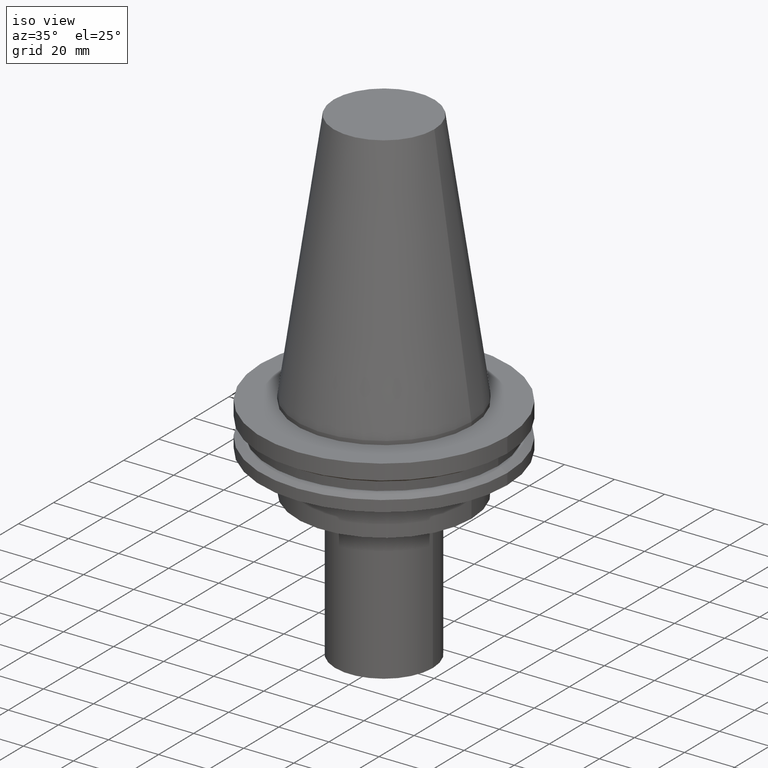
[diagram: clean part render]
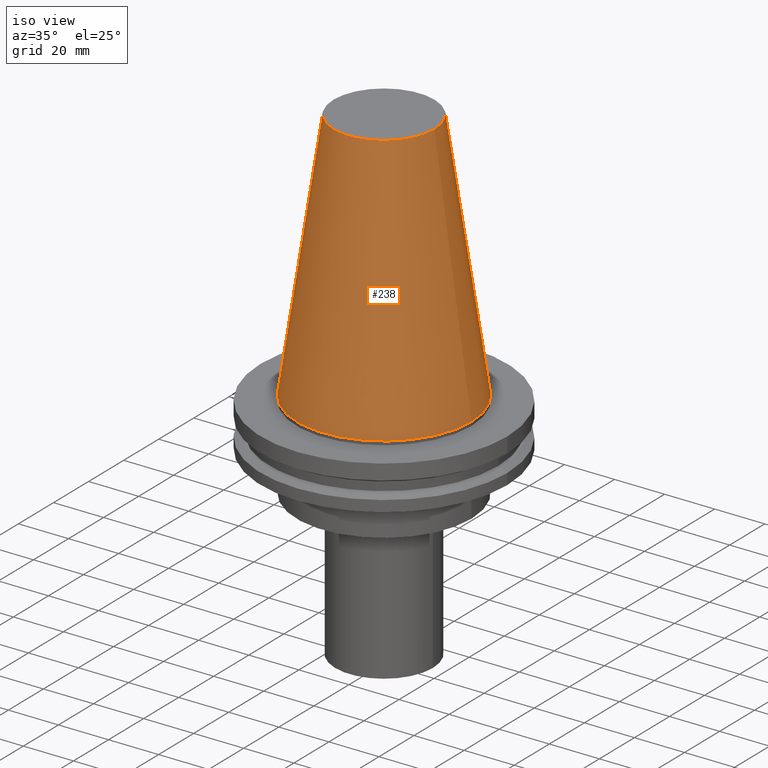
[diagram: tour spotlight — one face highlighted and labeled with its STEP entity id]
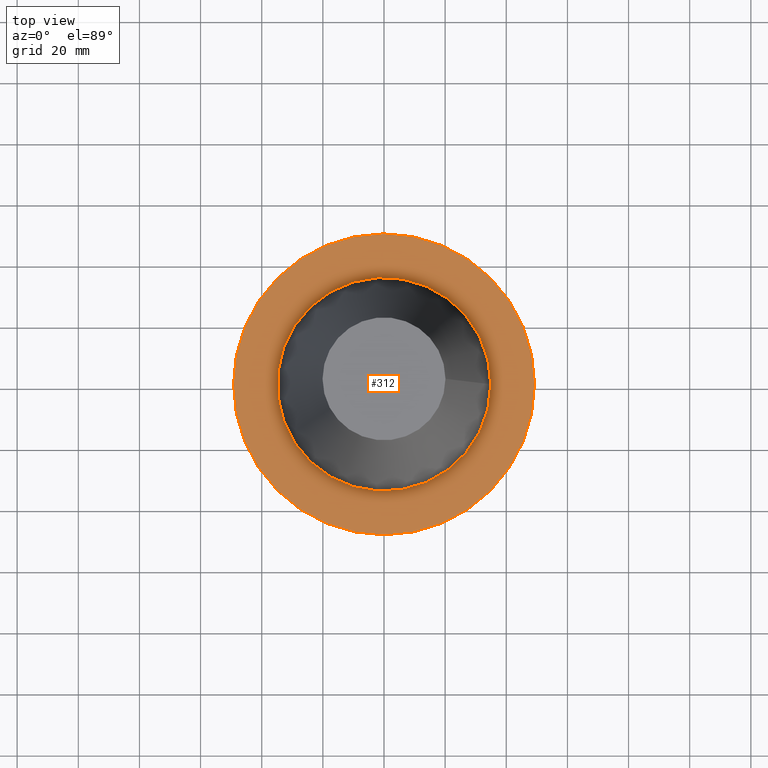
[diagram: tour spotlight — one face highlighted and labeled with its STEP entity id]
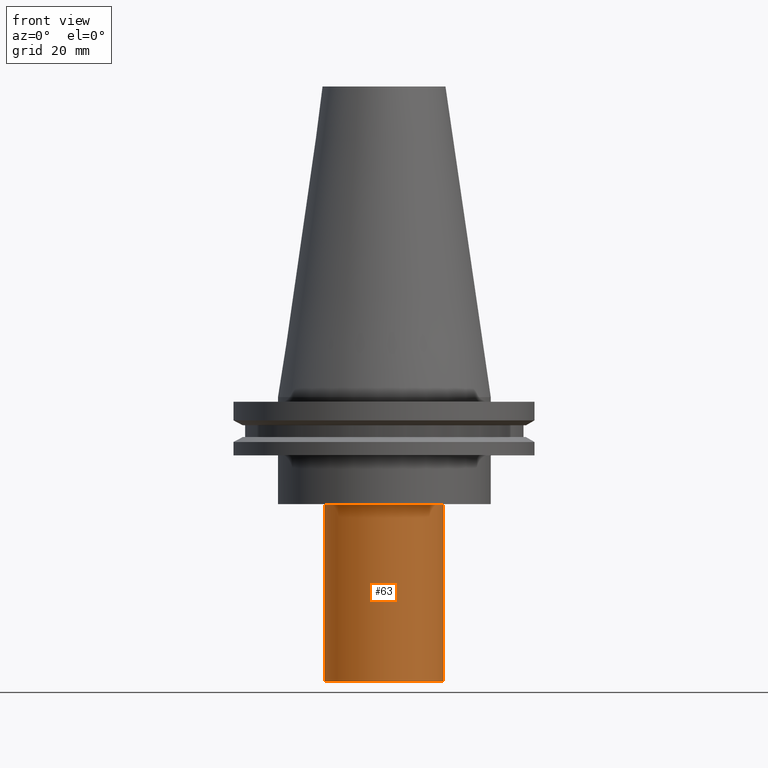
[diagram: tour spotlight — one face highlighted and labeled with its STEP entity id]
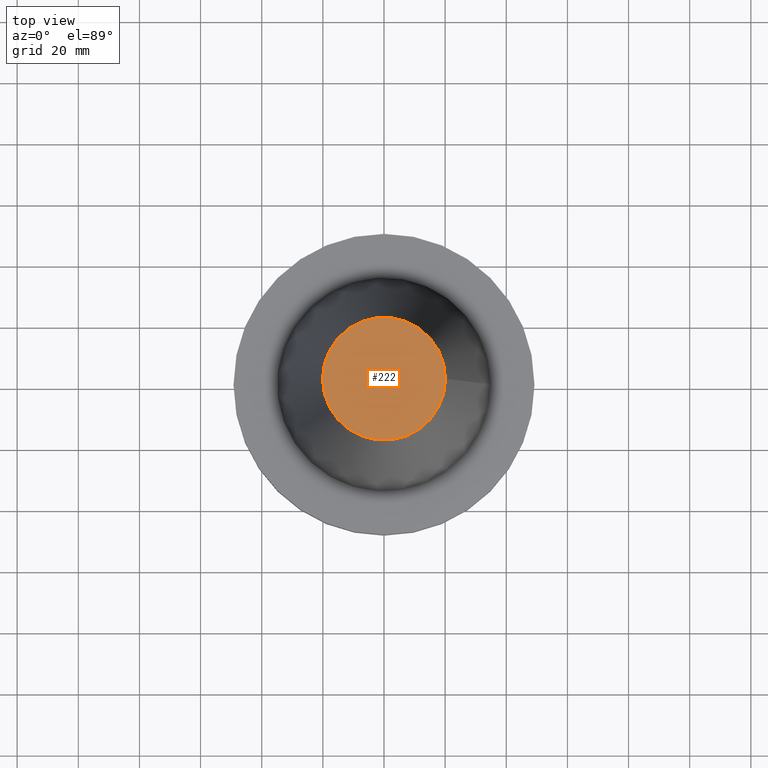
[diagram: tour spotlight — one face highlighted and labeled with its STEP entity id]
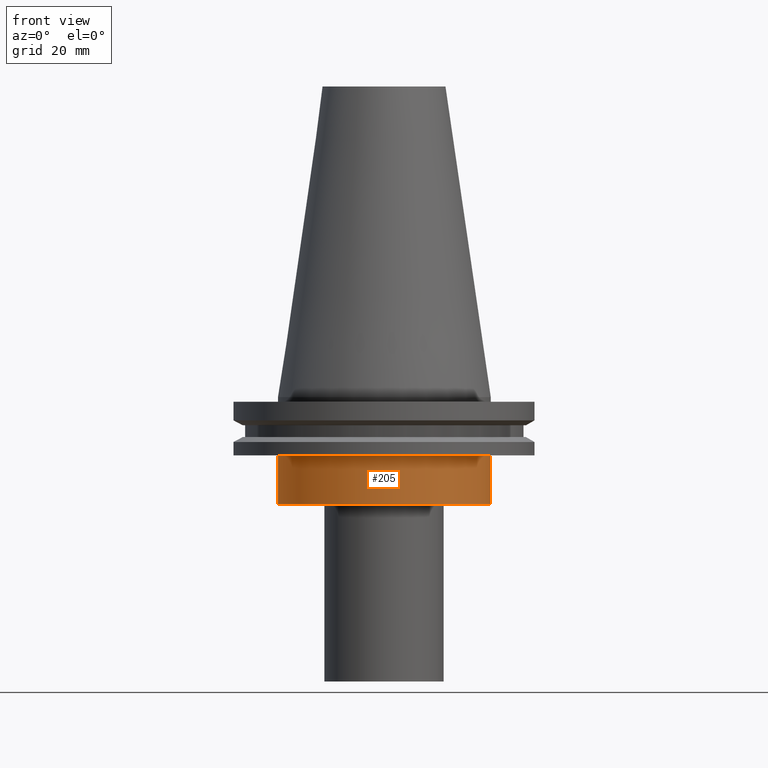
[diagram: tour spotlight — one face highlighted and labeled with its STEP entity id]
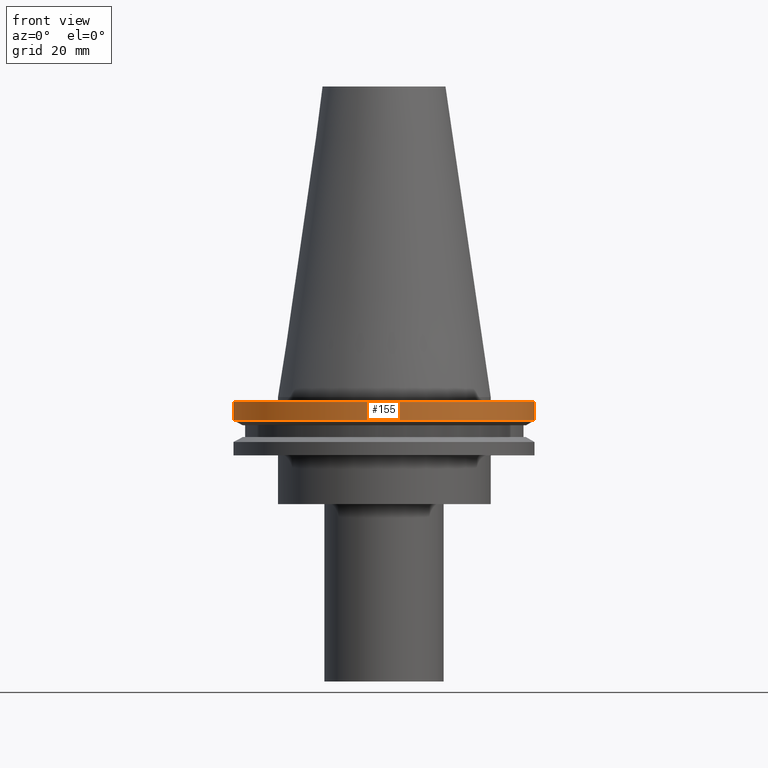
[diagram: tour spotlight — one face highlighted and labeled with its STEP entity id]
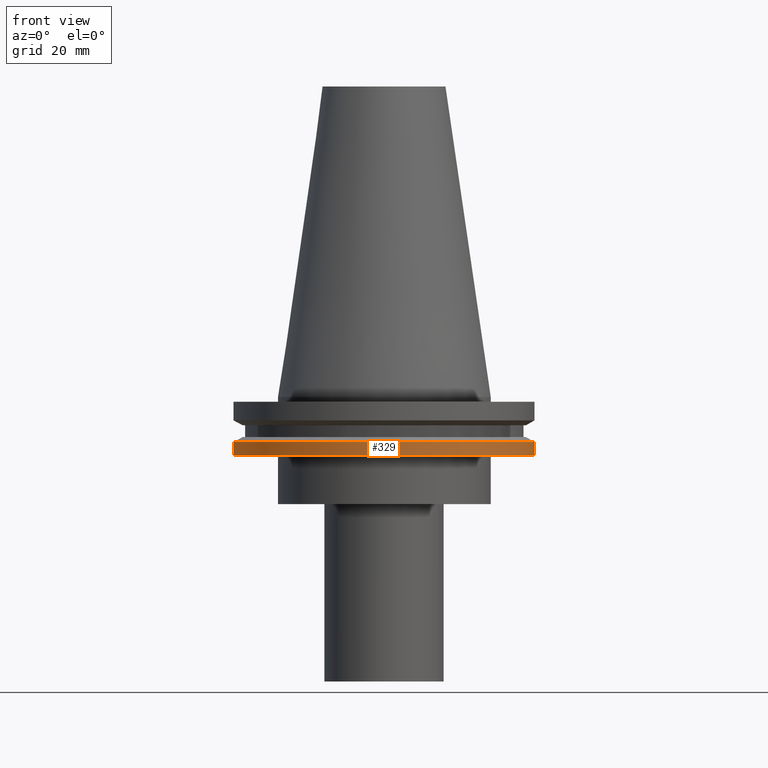
[diagram: tour spotlight — one face highlighted and labeled with its STEP entity id]
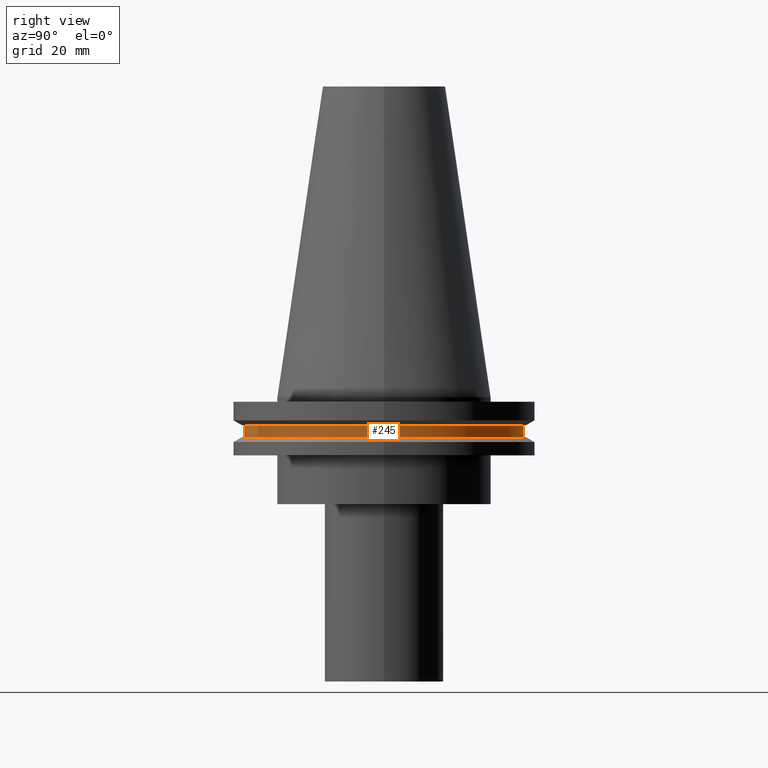
[diagram: tour spotlight — one face highlighted and labeled with its STEP entity id]
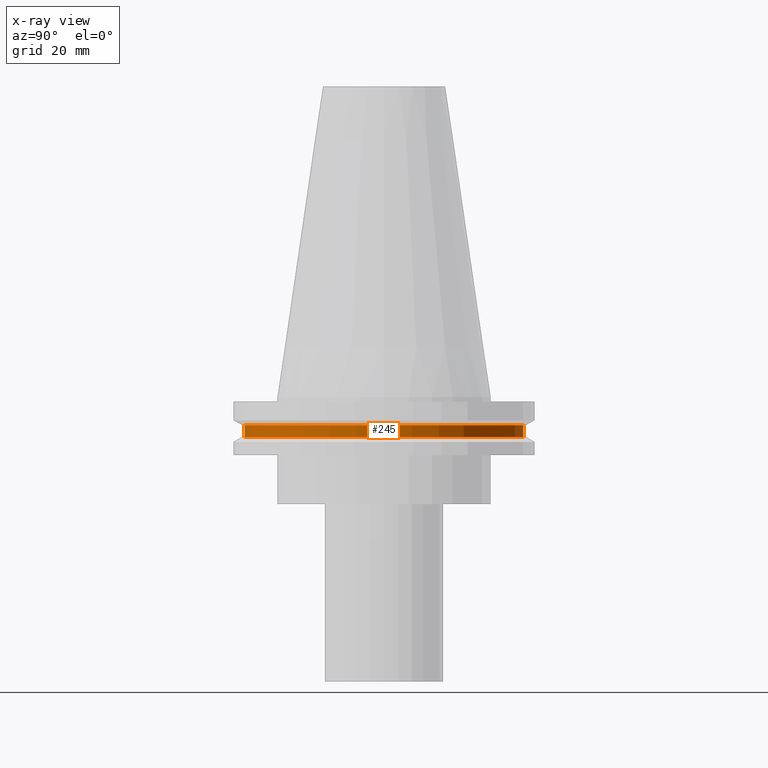
[diagram: x-ray of the same camera — body ghosted, this tour face saturated]
A machine part: a face-by-face anatomy tour. The part has 16 B-rep faces; the first image is the clean iso view, then the 8 largest visible faces are spotlighted one at a time (largest first), each with its STEP entity span.

Face 1 — iso view, entity #238. In plain terms, the highlighted conical surface has half-angle 8.297 deg.
Definition (entity closure, byte-faithful):
#4 = AXIS2_PLACEMENT_3D ( 'NONE', #50, #349, #318 ) ;
#35 = AXIS2_PLACEMENT_3D ( 'NONE', #72, #191, #130 ) ;
#50 = CARTESIAN_POINT ( 'NONE',  ( 0.000000000000000000, 0.000000000000000000, 0.000000000000000000 ) ) ;
#72 = CARTESIAN_POINT ( 'NONE',  ( 0.000000000000000000, 0.000000000000000000, 0.000000000000000000 ) ) ;
#112 = CARTESIAN_POINT ( 'NONE',  ( 34.92499999999999005, 0.000000000000000000, 0.000000000000000000 ) ) ;
#130 = DIRECTION ( 'NONE',  ( 1.000000000000000000, 0.000000000000000000, 0.000000000000000000 ) ) ;
#146 = CARTESIAN_POINT ( 'NONE',  ( 20.10819343178871321, 0.000000000000000000, 101.5999999999999801 ) ) ;
#163 = EDGE_CURVE ( 'NONE', #263, #263, #215, .T. ) ;
#164 = CONICAL_SURFACE ( 'NONE', #4, 34.92499999999999005, 0.1448138465474119452 ) ;
#185 = CIRCLE ( 'NONE', #324, 20.10819343178871321 ) ;
#191 = DIRECTION ( 'NONE',  ( -0.000000000000000000, -0.000000000000000000, 1.000000000000000000 ) ) ;
#209 = VERTEX_POINT ( 'NONE', #146 ) ;
#215 = CIRCLE ( 'NONE', #35, 34.92499999999999005 ) ;
#238 = ADVANCED_FACE ( 'NONE', ( #354, #353 ), #164, .T. ) ;
#263 = VERTEX_POINT ( 'NONE', #112 ) ;
#264 = EDGE_LOOP ( 'NONE', ( #296 ) ) ;
#284 = ORIENTED_EDGE ( 'NONE', *, *, #337, .F. ) ;
#295 = CARTESIAN_POINT ( 'NONE',  ( 0.000000000000000000, 0.000000000000000000, 101.5999999999999801 ) ) ;
#296 = ORIENTED_EDGE ( 'NONE', *, *, #163, .T. ) ;
#301 = EDGE_LOOP ( 'NONE', ( #284 ) ) ;
#318 = DIRECTION ( 'NONE',  ( -1.000000000000000000, 0.000000000000000000, 0.000000000000000000 ) ) ;
#324 = AXIS2_PLACEMENT_3D ( 'NONE', #295, #387, #358 ) ;
#337 = EDGE_CURVE ( 'NONE', #209, #209, #185, .T. ) ;
#349 = DIRECTION ( 'NONE',  ( 0.000000000000000000, 0.000000000000000000, -1.000000000000000000 ) ) ;
#353 = FACE_OUTER_BOUND ( 'NONE', #264, .T. ) ;
#354 = FACE_BOUND ( 'NONE', #301, .T. ) ;
#358 = DIRECTION ( 'NONE',  ( 1.000000000000000000, 0.000000000000000000, 0.000000000000000000 ) ) ;
#387 = DIRECTION ( 'NONE',  ( -0.000000000000000000, -0.000000000000000000, 1.000000000000000000 ) ) ;

Face 2 — top view, entity #312. In plain terms, the highlighted planar face has unit normal (0, 0, -1).
Definition (entity closure, byte-faithful):
#1 = CIRCLE ( 'NONE', #202, 34.92499999999999005 ) ;
#3 = ORIENTED_EDGE ( 'NONE', *, *, #93, .F. ) ;
#37 = AXIS2_PLACEMENT_3D ( 'NONE', #198, #47, #320 ) ;
#38 = CARTESIAN_POINT ( 'NONE',  ( 0.000000000000000000, 0.000000000000000000, -1.499999999999987566 ) ) ;
#47 = DIRECTION ( 'NONE',  ( 0.000000000000000000, 0.000000000000000000, -1.000000000000000000 ) ) ;
#49 = AXIS2_PLACEMENT_3D ( 'NONE', #186, #369, #152 ) ;
#85 = CARTESIAN_POINT ( 'NONE',  ( 34.92499999999999005, 0.000000000000000000, -1.499999999999987566 ) ) ;
#88 = VERTEX_POINT ( 'NONE', #85 ) ;
#93 = EDGE_CURVE ( 'NONE', #88, #88, #1, .T. ) ;
#100 = EDGE_LOOP ( 'NONE', ( #113 ) ) ;
#103 = FACE_BOUND ( 'NONE', #208, .T. ) ;
#105 = EDGE_CURVE ( 'NONE', #144, #144, #139, .T. ) ;
#107 = PLANE ( 'NONE',  #37 ) ;
#113 = ORIENTED_EDGE ( 'NONE', *, *, #105, .T. ) ;
#139 = CIRCLE ( 'NONE', #49, 49.21499999999999631 ) ;
#144 = VERTEX_POINT ( 'NONE', #335 ) ;
#152 = DIRECTION ( 'NONE',  ( 1.000000000000000000, 0.000000000000000000, 0.000000000000000000 ) ) ;
#186 = CARTESIAN_POINT ( 'NONE',  ( 0.000000000000000000, 0.000000000000000000, -1.499999999999987566 ) ) ;
#198 = CARTESIAN_POINT ( 'NONE',  ( 0.000000000000000000, 49.21499999999999631, -1.499999999999992895 ) ) ;
#202 = AXIS2_PLACEMENT_3D ( 'NONE', #38, #283, #373 ) ;
#208 = EDGE_LOOP ( 'NONE', ( #3 ) ) ;
#283 = DIRECTION ( 'NONE',  ( -0.000000000000000000, -0.000000000000000000, 1.000000000000000000 ) ) ;
#312 = ADVANCED_FACE ( 'NONE', ( #103, #351 ), #107, .F. ) ;
#320 = DIRECTION ( 'NONE',  ( -1.000000000000000000, 0.000000000000000000, -0.000000000000000000 ) ) ;
#335 = CARTESIAN_POINT ( 'NONE',  ( 49.21499999999999631, 0.000000000000000000, -1.499999999999987566 ) ) ;
#351 = FACE_OUTER_BOUND ( 'NONE', #100, .T. ) ;
#369 = DIRECTION ( 'NONE',  ( -0.000000000000000000, -0.000000000000000000, 1.000000000000000000 ) ) ;
#373 = DIRECTION ( 'NONE',  ( 1.000000000000000000, 0.000000000000000000, 0.000000000000000000 ) ) ;

Face 3 — front view, entity #63. In plain terms, the highlighted cylindrical surface (bore or boss wall) has radius 19.5 mm, axis along (-0, -0, 1).
Definition (entity closure, byte-faithful):
#7 = EDGE_CURVE ( 'NONE', #29, #29, #290, .T. ) ;
#8 = CARTESIAN_POINT ( 'NONE',  ( 0.000000000000000000, 0.000000000000000000, 0.000000000000000000 ) ) ;
#18 = DIRECTION ( 'NONE',  ( 1.000000000000000000, 0.000000000000000000, 0.000000000000000000 ) ) ;
#23 = VERTEX_POINT ( 'NONE', #114 ) ;
#29 = VERTEX_POINT ( 'NONE', #394 ) ;
#63 = ADVANCED_FACE ( 'NONE', ( #376, #250 ), #217, .T. ) ;
#65 = DIRECTION ( 'NONE',  ( -0.000000000000000000, -0.000000000000000000, 1.000000000000000000 ) ) ;
#70 = DIRECTION ( 'NONE',  ( 1.000000000000000000, 0.000000000000000000, 0.000000000000000000 ) ) ;
#74 = DIRECTION ( 'NONE',  ( -0.000000000000000000, -0.000000000000000000, 1.000000000000000000 ) ) ;
#89 = AXIS2_PLACEMENT_3D ( 'NONE', #292, #228, #18 ) ;
#114 = CARTESIAN_POINT ( 'NONE',  ( 19.50000000000000000, 0.000000000000000000, -35.00000000000000000 ) ) ;
#123 = AXIS2_PLACEMENT_3D ( 'NONE', #8, #74, #343 ) ;
#160 = ORIENTED_EDGE ( 'NONE', *, *, #7, .T. ) ;
#173 = EDGE_LOOP ( 'NONE', ( #176 ) ) ;
#176 = ORIENTED_EDGE ( 'NONE', *, *, #227, .F. ) ;
#217 = CYLINDRICAL_SURFACE ( 'NONE', #123, 19.50000000000000000 ) ;
#221 = CARTESIAN_POINT ( 'NONE',  ( 0.000000000000000000, 0.000000000000000000, -93.00000000000000000 ) ) ;
#227 = EDGE_CURVE ( 'NONE', #23, #23, #365, .T. ) ;
#228 = DIRECTION ( 'NONE',  ( -0.000000000000000000, -0.000000000000000000, 1.000000000000000000 ) ) ;
#250 = FACE_OUTER_BOUND ( 'NONE', #332, .T. ) ;
#290 = CIRCLE ( 'NONE', #326, 19.50000000000000000 ) ;
#292 = CARTESIAN_POINT ( 'NONE',  ( 0.000000000000000000, 0.000000000000000000, -35.00000000000000000 ) ) ;
#326 = AXIS2_PLACEMENT_3D ( 'NONE', #221, #65, #70 ) ;
#332 = EDGE_LOOP ( 'NONE', ( #160 ) ) ;
#343 = DIRECTION ( 'NONE',  ( 1.000000000000000000, 0.000000000000000000, 0.000000000000000000 ) ) ;
#365 = CIRCLE ( 'NONE', #89, 19.50000000000000000 ) ;
#376 = FACE_OUTER_BOUND ( 'NONE', #173, .T. ) ;
#394 = CARTESIAN_POINT ( 'NONE',  ( 19.50000000000000000, 0.000000000000000000, -93.00000000000000000 ) ) ;

Face 4 — top view, entity #222. In plain terms, the highlighted planar face has unit normal (0, 0, -1).
Definition (entity closure, byte-faithful):
#16 = CARTESIAN_POINT ( 'NONE',  ( 0.000000000000000000, 20.10819343178871321, 101.5999999999999943 ) ) ;
#21 = AXIS2_PLACEMENT_3D ( 'NONE', #16, #165, #285 ) ;
#146 = CARTESIAN_POINT ( 'NONE',  ( 20.10819343178871321, 0.000000000000000000, 101.5999999999999801 ) ) ;
#165 = DIRECTION ( 'NONE',  ( 0.000000000000000000, 0.000000000000000000, -1.000000000000000000 ) ) ;
#178 = ORIENTED_EDGE ( 'NONE', *, *, #337, .T. ) ;
#185 = CIRCLE ( 'NONE', #324, 20.10819343178871321 ) ;
#196 = PLANE ( 'NONE',  #21 ) ;
#199 = FACE_OUTER_BOUND ( 'NONE', #327, .T. ) ;
#209 = VERTEX_POINT ( 'NONE', #146 ) ;
#222 = ADVANCED_FACE ( 'NONE', ( #199 ), #196, .F. ) ;
#285 = DIRECTION ( 'NONE',  ( -1.000000000000000000, 0.000000000000000000, -0.000000000000000000 ) ) ;
#295 = CARTESIAN_POINT ( 'NONE',  ( 0.000000000000000000, 0.000000000000000000, 101.5999999999999801 ) ) ;
#324 = AXIS2_PLACEMENT_3D ( 'NONE', #295, #387, #358 ) ;
#327 = EDGE_LOOP ( 'NONE', ( #178 ) ) ;
#337 = EDGE_CURVE ( 'NONE', #209, #209, #185, .T. ) ;
#358 = DIRECTION ( 'NONE',  ( 1.000000000000000000, 0.000000000000000000, 0.000000000000000000 ) ) ;
#387 = DIRECTION ( 'NONE',  ( -0.000000000000000000, -0.000000000000000000, 1.000000000000000000 ) ) ;

Face 5 — front view, entity #205. In plain terms, the highlighted cylindrical surface (bore or boss wall) has radius 34.925 mm, axis along (-0, -0, 1).
Definition (entity closure, byte-faithful):
#10 = EDGE_LOOP ( 'NONE', ( #303 ) ) ;
#15 = EDGE_CURVE ( 'NONE', #117, #117, #210, .T. ) ;
#19 = CARTESIAN_POINT ( 'NONE',  ( 0.000000000000000000, 0.000000000000000000, 101.5999999999999943 ) ) ;
#52 = FACE_OUTER_BOUND ( 'NONE', #87, .T. ) ;
#87 = EDGE_LOOP ( 'NONE', ( #92 ) ) ;
#92 = ORIENTED_EDGE ( 'NONE', *, *, #15, .T. ) ;
#117 = VERTEX_POINT ( 'NONE', #174 ) ;
#128 = DIRECTION ( 'NONE',  ( 1.000000000000000000, 0.000000000000000000, 0.000000000000000000 ) ) ;
#137 = DIRECTION ( 'NONE',  ( -0.000000000000000000, -0.000000000000000000, 1.000000000000000000 ) ) ;
#149 = EDGE_CURVE ( 'NONE', #235, #235, #307, .T. ) ;
#157 = DIRECTION ( 'NONE',  ( -0.000000000000000000, -0.000000000000000000, 1.000000000000000000 ) ) ;
#162 = DIRECTION ( 'NONE',  ( 1.000000000000000000, 0.000000000000000000, 0.000000000000000000 ) ) ;
#174 = CARTESIAN_POINT ( 'NONE',  ( 34.92499999999999716, 0.000000000000000000, -35.00000000000000000 ) ) ;
#184 = DIRECTION ( 'NONE',  ( -0.000000000000000000, -0.000000000000000000, 1.000000000000000000 ) ) ;
#205 = ADVANCED_FACE ( 'NONE', ( #322, #52 ), #289, .T. ) ;
#210 = CIRCLE ( 'NONE', #254, 34.92499999999999716 ) ;
#219 = CARTESIAN_POINT ( 'NONE',  ( 0.000000000000000000, 0.000000000000000000, -19.04999999999999716 ) ) ;
#235 = VERTEX_POINT ( 'NONE', #391 ) ;
#254 = AXIS2_PLACEMENT_3D ( 'NONE', #339, #184, #281 ) ;
#274 = AXIS2_PLACEMENT_3D ( 'NONE', #219, #157, #128 ) ;
#281 = DIRECTION ( 'NONE',  ( 1.000000000000000000, 0.000000000000000000, 0.000000000000000000 ) ) ;
#289 = CYLINDRICAL_SURFACE ( 'NONE', #341, 34.92499999999999716 ) ;
#303 = ORIENTED_EDGE ( 'NONE', *, *, #149, .F. ) ;
#307 = CIRCLE ( 'NONE', #274, 34.92499999999999716 ) ;
#322 = FACE_OUTER_BOUND ( 'NONE', #10, .T. ) ;
#339 = CARTESIAN_POINT ( 'NONE',  ( 0.000000000000000000, 0.000000000000000000, -35.00000000000000000 ) ) ;
#341 = AXIS2_PLACEMENT_3D ( 'NONE', #19, #137, #162 ) ;
#391 = CARTESIAN_POINT ( 'NONE',  ( 34.92499999999999716, 0.000000000000000000, -19.04999999999999716 ) ) ;

Face 6 — front view, entity #155. In plain terms, the highlighted cylindrical surface (bore or boss wall) has radius 49.215 mm, axis along (-0, -0, 1).
Definition (entity closure, byte-faithful):
#49 = AXIS2_PLACEMENT_3D ( 'NONE', #186, #369, #152 ) ;
#91 = EDGE_LOOP ( 'NONE', ( #203 ) ) ;
#98 = ORIENTED_EDGE ( 'NONE', *, *, #105, .F. ) ;
#102 = FACE_OUTER_BOUND ( 'NONE', #118, .T. ) ;
#105 = EDGE_CURVE ( 'NONE', #144, #144, #139, .T. ) ;
#118 = EDGE_LOOP ( 'NONE', ( #98 ) ) ;
#131 = CARTESIAN_POINT ( 'NONE',  ( 0.000000000000000000, 0.000000000000000000, 101.5999999999999943 ) ) ;
#139 = CIRCLE ( 'NONE', #49, 49.21499999999999631 ) ;
#144 = VERTEX_POINT ( 'NONE', #335 ) ;
#152 = DIRECTION ( 'NONE',  ( 1.000000000000000000, 0.000000000000000000, 0.000000000000000000 ) ) ;
#155 = ADVANCED_FACE ( 'NONE', ( #102, #161 ), #346, .T. ) ;
#161 = FACE_OUTER_BOUND ( 'NONE', #91, .T. ) ;
#167 = CARTESIAN_POINT ( 'NONE',  ( 0.000000000000000000, 0.000000000000000000, -7.602389855251287187 ) ) ;
#169 = AXIS2_PLACEMENT_3D ( 'NONE', #167, #321, #200 ) ;
#171 = CIRCLE ( 'NONE', #169, 49.21500000000000341 ) ;
#177 = CARTESIAN_POINT ( 'NONE',  ( 49.21500000000000341, 0.000000000000000000, -7.602389855251287187 ) ) ;
#186 = CARTESIAN_POINT ( 'NONE',  ( 0.000000000000000000, 0.000000000000000000, -1.499999999999987566 ) ) ;
#194 = EDGE_CURVE ( 'NONE', #294, #294, #171, .T. ) ;
#197 = AXIS2_PLACEMENT_3D ( 'NONE', #131, #253, #344 ) ;
#200 = DIRECTION ( 'NONE',  ( 1.000000000000000000, 0.000000000000000000, 0.000000000000000000 ) ) ;
#203 = ORIENTED_EDGE ( 'NONE', *, *, #194, .T. ) ;
#253 = DIRECTION ( 'NONE',  ( -0.000000000000000000, -0.000000000000000000, 1.000000000000000000 ) ) ;
#294 = VERTEX_POINT ( 'NONE', #177 ) ;
#321 = DIRECTION ( 'NONE',  ( -0.000000000000000000, -0.000000000000000000, 1.000000000000000000 ) ) ;
#335 = CARTESIAN_POINT ( 'NONE',  ( 49.21499999999999631, 0.000000000000000000, -1.499999999999987566 ) ) ;
#344 = DIRECTION ( 'NONE',  ( 1.000000000000000000, 0.000000000000000000, 0.000000000000000000 ) ) ;
#346 = CYLINDRICAL_SURFACE ( 'NONE', #197, 49.21499999999999631 ) ;
#369 = DIRECTION ( 'NONE',  ( -0.000000000000000000, -0.000000000000000000, 1.000000000000000000 ) ) ;

Face 7 — front view, entity #329. In plain terms, the highlighted cylindrical surface (bore or boss wall) has radius 49.215 mm, axis along (-0, -0, 1).
Definition (entity closure, byte-faithful):
#22 = DIRECTION ( 'NONE',  ( 1.000000000000000000, 0.000000000000000000, 0.000000000000000000 ) ) ;
#26 = FACE_OUTER_BOUND ( 'NONE', #27, .T. ) ;
#27 = EDGE_LOOP ( 'NONE', ( #364 ) ) ;
#56 = FACE_OUTER_BOUND ( 'NONE', #336, .T. ) ;
#75 = AXIS2_PLACEMENT_3D ( 'NONE', #136, #106, #382 ) ;
#86 = VERTEX_POINT ( 'NONE', #211 ) ;
#106 = DIRECTION ( 'NONE',  ( -0.000000000000000000, -0.000000000000000000, 1.000000000000000000 ) ) ;
#121 = CIRCLE ( 'NONE', #348, 49.21499999999998920 ) ;
#136 = CARTESIAN_POINT ( 'NONE',  ( 0.000000000000000000, 0.000000000000000000, -14.65761014474876944 ) ) ;
#148 = DIRECTION ( 'NONE',  ( 1.000000000000000000, 0.000000000000000000, 0.000000000000000000 ) ) ;
#189 = EDGE_CURVE ( 'NONE', #300, #300, #121, .T. ) ;
#211 = CARTESIAN_POINT ( 'NONE',  ( 49.21499999999998920, 0.000000000000000000, -14.65761014474876944 ) ) ;
#229 = CIRCLE ( 'NONE', #75, 49.21499999999998920 ) ;
#239 = CARTESIAN_POINT ( 'NONE',  ( 0.000000000000000000, 0.000000000000000000, 101.5999999999999943 ) ) ;
#252 = CARTESIAN_POINT ( 'NONE',  ( 0.000000000000000000, 0.000000000000000000, -19.04999999999999716 ) ) ;
#261 = DIRECTION ( 'NONE',  ( -0.000000000000000000, -0.000000000000000000, 1.000000000000000000 ) ) ;
#265 = CYLINDRICAL_SURFACE ( 'NONE', #357, 49.21499999999998920 ) ;
#300 = VERTEX_POINT ( 'NONE', #388 ) ;
#305 = EDGE_CURVE ( 'NONE', #86, #86, #229, .T. ) ;
#329 = ADVANCED_FACE ( 'NONE', ( #56, #26 ), #265, .T. ) ;
#336 = EDGE_LOOP ( 'NONE', ( #361 ) ) ;
#348 = AXIS2_PLACEMENT_3D ( 'NONE', #252, #261, #22 ) ;
#357 = AXIS2_PLACEMENT_3D ( 'NONE', #239, #360, #148 ) ;
#360 = DIRECTION ( 'NONE',  ( -0.000000000000000000, -0.000000000000000000, 1.000000000000000000 ) ) ;
#361 = ORIENTED_EDGE ( 'NONE', *, *, #305, .F. ) ;
#364 = ORIENTED_EDGE ( 'NONE', *, *, #189, .T. ) ;
#382 = DIRECTION ( 'NONE',  ( 1.000000000000000000, 0.000000000000000000, 0.000000000000000000 ) ) ;
#388 = CARTESIAN_POINT ( 'NONE',  ( 49.21499999999998920, 0.000000000000000000, -19.04999999999999716 ) ) ;

Face 8 — right view, entity #245. An x-ray twin of the same camera follows (body ghosted, this face saturated) — the face is partly hidden behind the body. In plain terms, the highlighted cylindrical surface (bore or boss wall) has radius 45.645 mm, axis along (-0, -0, 1).
Definition (entity closure, byte-faithful):
#33 = ORIENTED_EDGE ( 'NONE', *, *, #316, .T. ) ;
#48 = DIRECTION ( 'NONE',  ( 1.000000000000000000, 0.000000000000000000, 0.000000000000000000 ) ) ;
#58 = EDGE_LOOP ( 'NONE', ( #33 ) ) ;
#59 = DIRECTION ( 'NONE',  ( 1.000000000000000000, 0.000000000000000000, 0.000000000000000000 ) ) ;
#77 = CARTESIAN_POINT ( 'NONE',  ( 0.000000000000000000, 0.000000000000000000, 101.5999999999999943 ) ) ;
#111 = DIRECTION ( 'NONE',  ( 1.000000000000000000, 0.000000000000000000, 0.000000000000000000 ) ) ;
#142 = VERTEX_POINT ( 'NONE', #237 ) ;
#172 = VERTEX_POINT ( 'NONE', #363 ) ;
#180 = DIRECTION ( 'NONE',  ( -0.000000000000000000, -0.000000000000000000, 1.000000000000000000 ) ) ;
#237 = CARTESIAN_POINT ( 'NONE',  ( 45.64500000000000313, 0.000000000000000000, -9.204999999999991189 ) ) ;
#241 = AXIS2_PLACEMENT_3D ( 'NONE', #325, #180, #59 ) ;
#242 = AXIS2_PLACEMENT_3D ( 'NONE', #77, #352, #48 ) ;
#245 = ADVANCED_FACE ( 'NONE', ( #258, #317 ), #383, .T. ) ;
#258 = FACE_OUTER_BOUND ( 'NONE', #340, .T. ) ;
#291 = CIRCLE ( 'NONE', #385, 45.64500000000000313 ) ;
#298 = CARTESIAN_POINT ( 'NONE',  ( 0.000000000000000000, 0.000000000000000000, -13.05499999999999794 ) ) ;
#316 = EDGE_CURVE ( 'NONE', #172, #172, #291, .T. ) ;
#317 = FACE_OUTER_BOUND ( 'NONE', #58, .T. ) ;
#325 = CARTESIAN_POINT ( 'NONE',  ( 0.000000000000000000, 0.000000000000000000, -9.204999999999991189 ) ) ;
#331 = DIRECTION ( 'NONE',  ( -0.000000000000000000, -0.000000000000000000, 1.000000000000000000 ) ) ;
#340 = EDGE_LOOP ( 'NONE', ( #389 ) ) ;
#352 = DIRECTION ( 'NONE',  ( -0.000000000000000000, -0.000000000000000000, 1.000000000000000000 ) ) ;
#363 = CARTESIAN_POINT ( 'NONE',  ( 45.64500000000000313, 0.000000000000000000, -13.05499999999999794 ) ) ;
#380 = CIRCLE ( 'NONE', #241, 45.64500000000000313 ) ;
#383 = CYLINDRICAL_SURFACE ( 'NONE', #242, 45.64500000000000313 ) ;
#385 = AXIS2_PLACEMENT_3D ( 'NONE', #298, #331, #111 ) ;
#389 = ORIENTED_EDGE ( 'NONE', *, *, #395, .F. ) ;
#395 = EDGE_CURVE ( 'NONE', #142, #142, #380, .T. ) ;